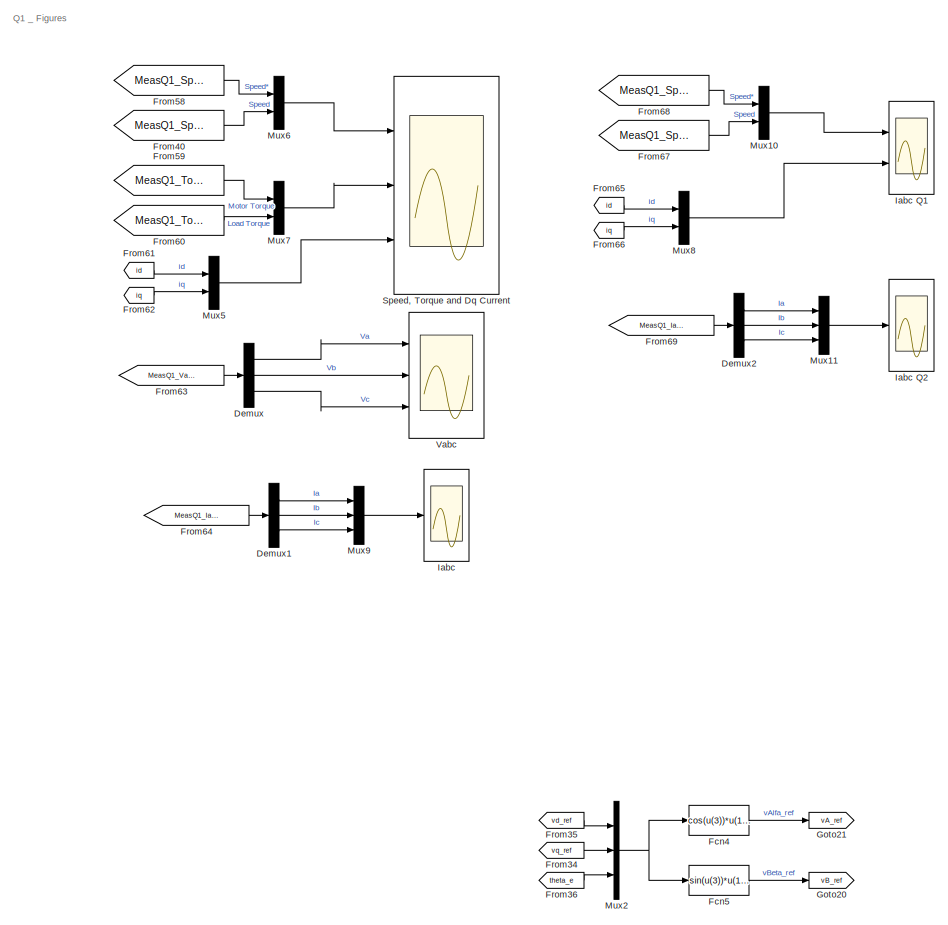
[diagram: root canvas - part 1/6, top left region]
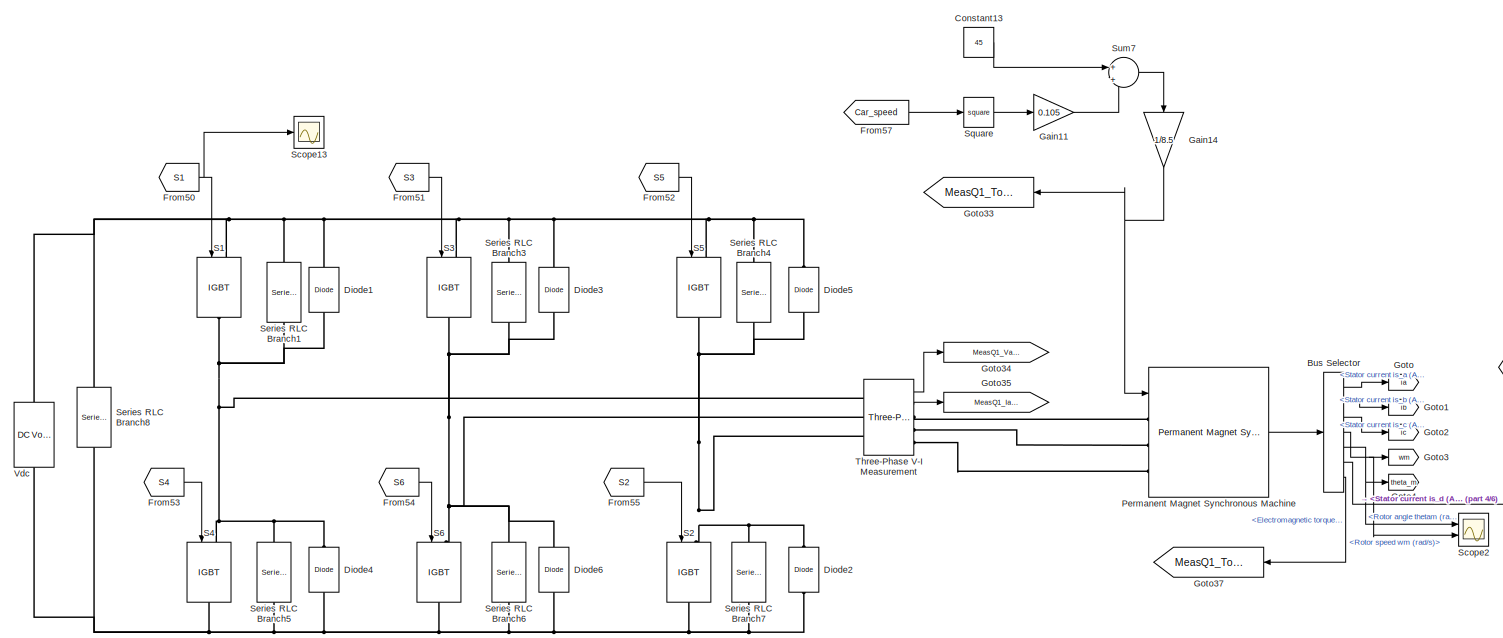
[diagram: root canvas - part 2/6, central region]
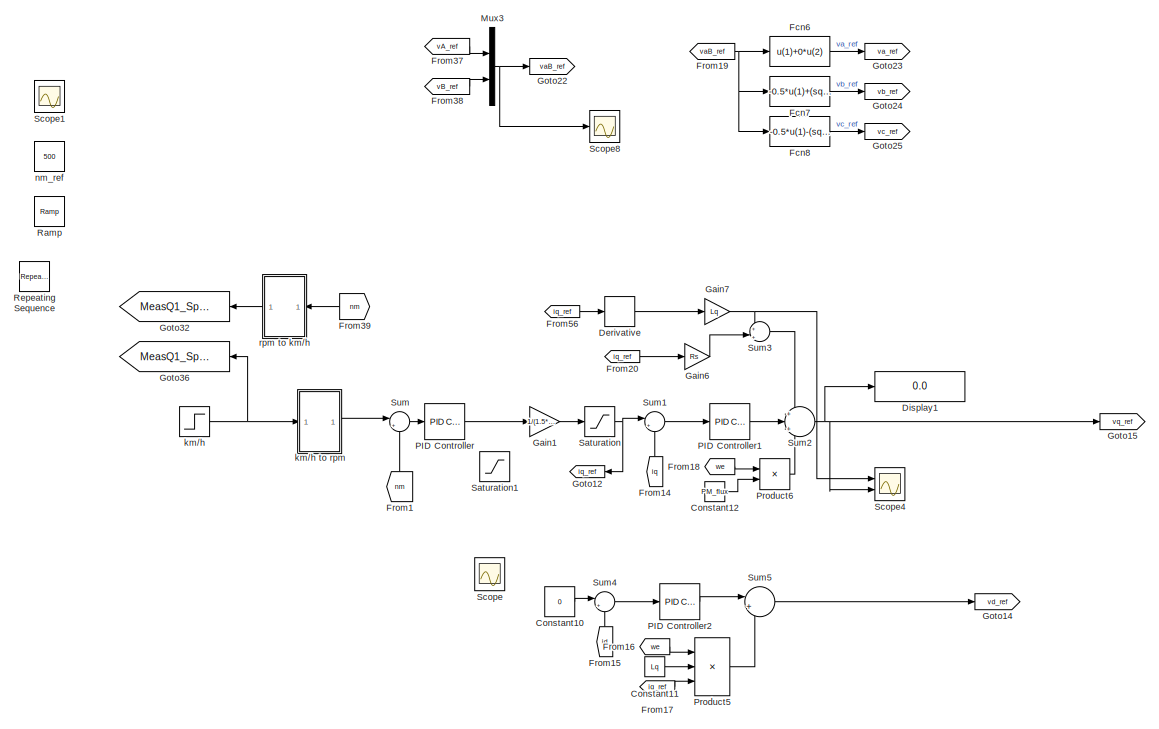
[diagram: root canvas - part 3/6, middle left region]
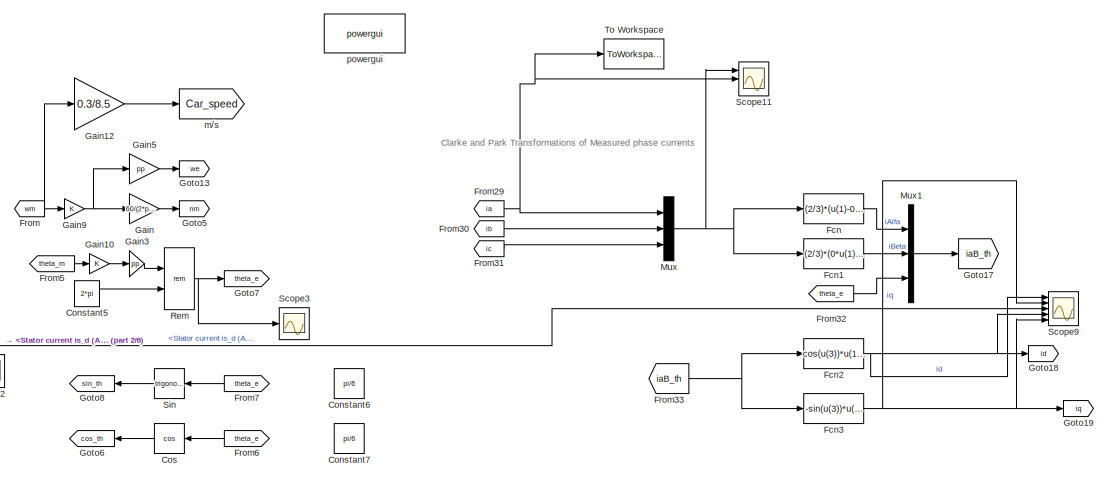
[diagram: root canvas - part 4/6, middle right region]
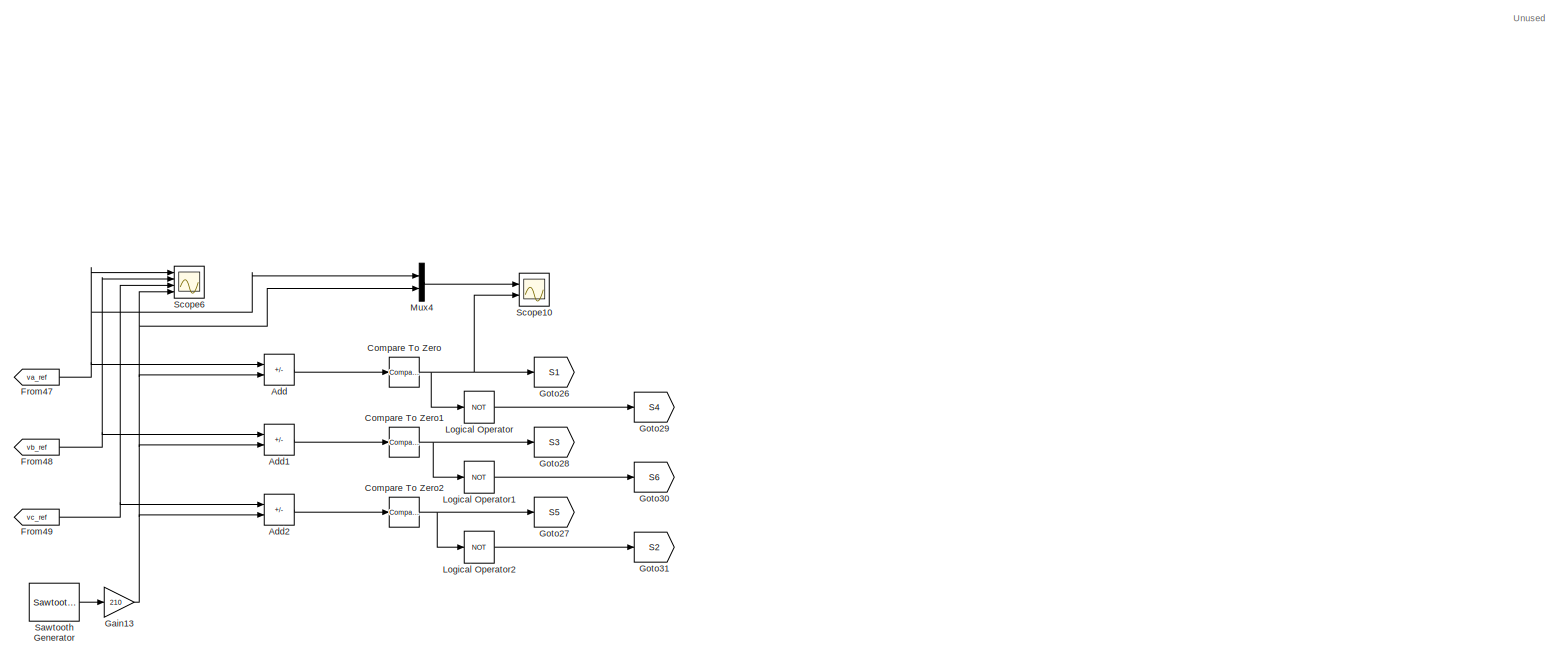
[diagram: root canvas - part 5/6, bottom center region]
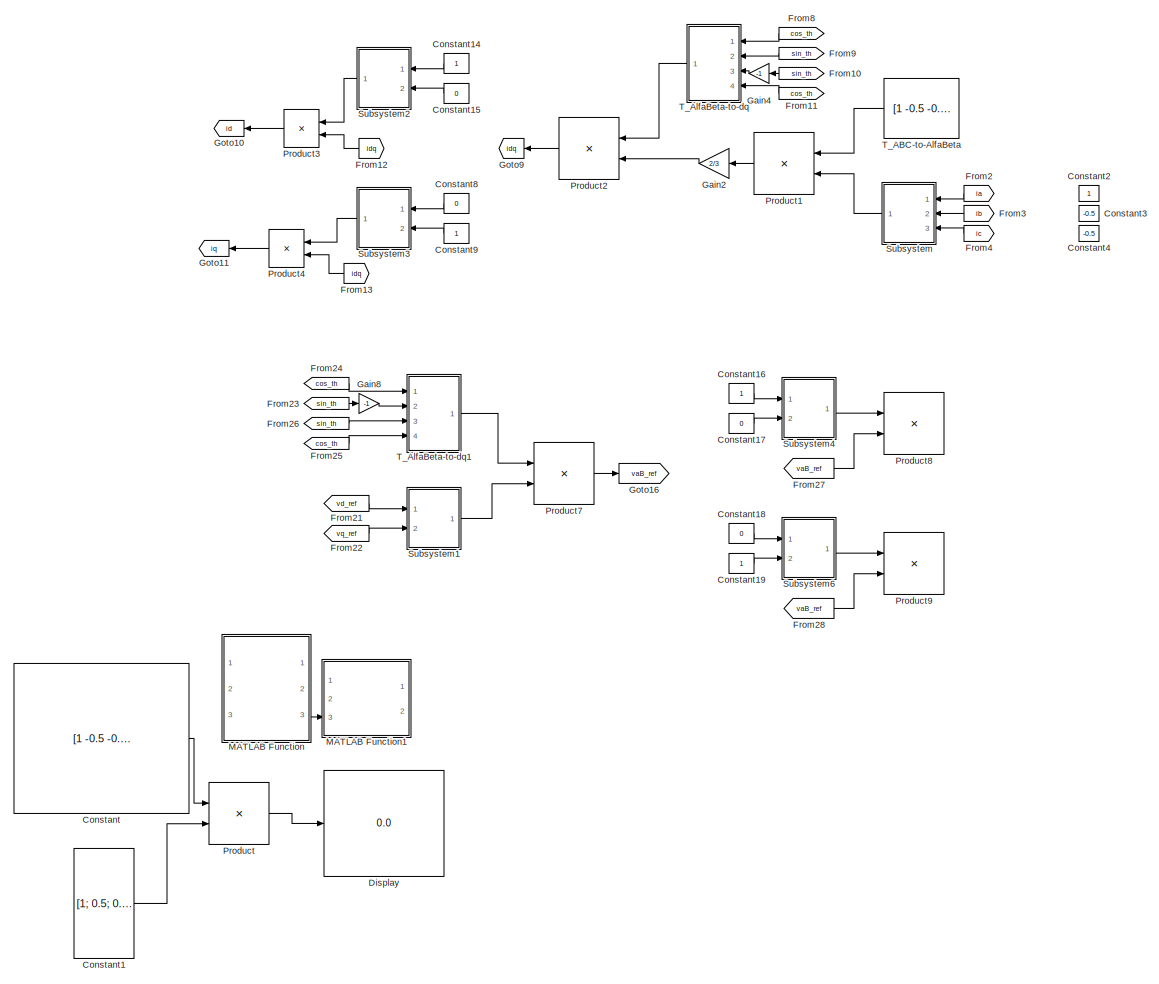
[diagram: root canvas - part 6/6, bottom right region]
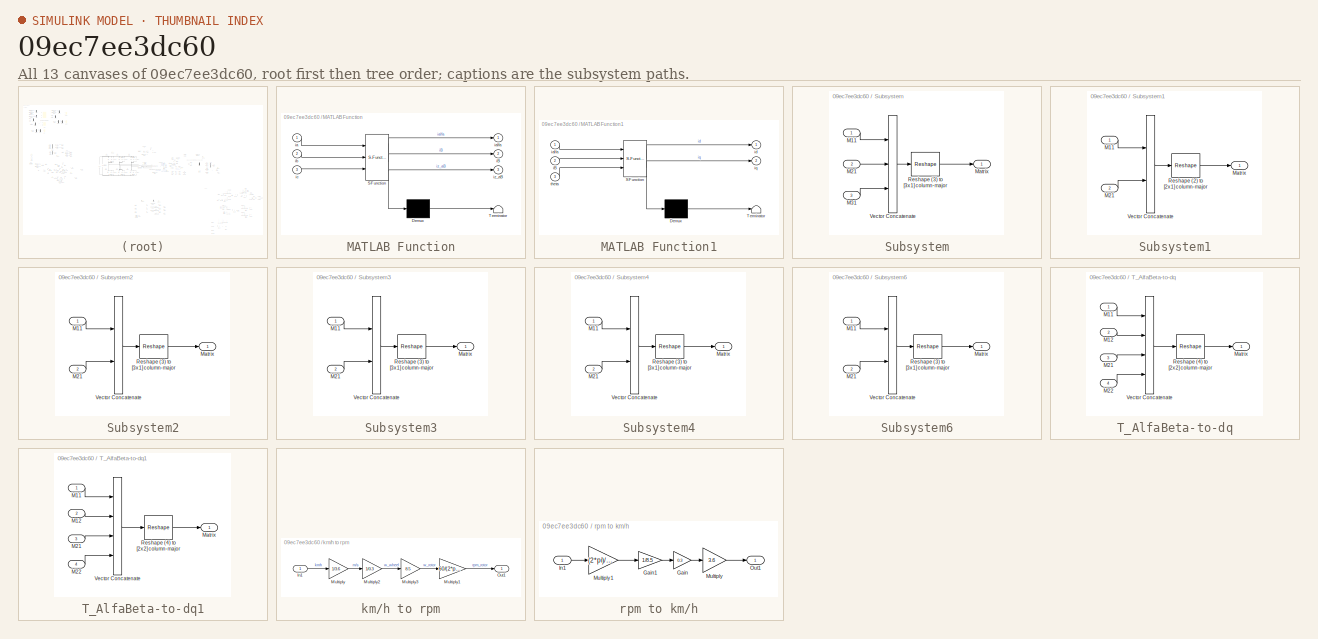
[diagram: thumbnail index - all 13 canvases of the model, root first then tree order]
MODEL slx_09ec7ee3dc60
KIND model
CONFIG AbsTol = auto
CONFIG EnableMultiTasking = off
CONFIG FixedStep = auto
CONFIG MaxStep = auto
CONFIG MinStep = auto
CONFIG RelTol = 1e-3
CONFIG SampleTimeConstraint = Unconstrained
CONFIG SolverName = FixedStepDiscrete
CONFIG StartTime = 0.0
CONFIG StopTime = 2
BLOCK [Sum] Add
  IconShape = rectangular
  Inputs = +-
  Ports = [2, 1]
BLOCK [Sum] Add1
  IconShape = rectangular
  Inputs = +-
  Ports = [2, 1]
BLOCK [Sum] Add2
  IconShape = rectangular
  Inputs = +-
  Ports = [2, 1]
BLOCK [BusSelector] Bus Selector
  OutputSignals = Stator current is_a (A),Stator current is_b (A),Stator current is_c (A),Rotor speed wm (rad/s),Rotor angle thetam (rad),Stator current is_d (A),Electromagnetic torque Te (N*m)
  Ports = [1, 7]
BLOCK [Reference] Compare To Zero  REF=simulink/Logic and Bit
Operations/Compare
To Zero
  Ports = [1, 1]
  SourceBlock = simulink/Logic and Bit\nOperations/Compare\nTo Zero
  SourceProductBaseCode = SL
  SourceType = Compare To Zero
BLOCK [Reference] Compare To Zero1  REF=simulink/Logic and Bit
Operations/Compare
To Zero
  Ports = [1, 1]
  SourceBlock = simulink/Logic and Bit\nOperations/Compare\nTo Zero
  SourceProductBaseCode = SL
  SourceType = Compare To Zero
BLOCK [Reference] Compare To Zero2  REF=simulink/Logic and Bit
Operations/Compare
To Zero
  Ports = [1, 1]
  SourceBlock = simulink/Logic and Bit\nOperations/Compare\nTo Zero
  SourceProductBaseCode = SL
  SourceType = Compare To Zero
BLOCK [Constant] Constant
  Commented = on
  Value = [1 -0.5 -0.5; 0 sqrt(3)/2 -sqrt(3)/2]
  VectorParams1D = off
BLOCK [Constant] Constant1
  Commented = on
  Value = [1; 0.5; 0.5]
  VectorParams1D = off
BLOCK [Constant] Constant10
  Value = 0
BLOCK [Constant] Constant11
  Value = Lq
BLOCK [Constant] Constant12
  Value = PM_flux
BLOCK [Constant] Constant13
  Value = 45
BLOCK [Constant] Constant14
  Commented = on
  NameLocation = top
BLOCK [Constant] Constant15
  Commented = on
  NameLocation = top
  Value = 0
BLOCK [Constant] Constant16
  Commented = on
BLOCK [Constant] Constant17
  Commented = on
  Value = 0
BLOCK [Constant] Constant18
  Commented = on
  Value = 0
BLOCK [Constant] Constant19
  Commented = on
BLOCK [Constant] Constant2
  Commented = on
  NameLocation = top
BLOCK [Constant] Constant3
  Commented = on
  NameLocation = top
  Value = -0.5
BLOCK [Constant] Constant4
  Commented = on
  NameLocation = top
  Value = -0.5
BLOCK [Constant] Constant5
  Value = 2*pi
BLOCK [Constant] Constant6
  Commented = on
  NameLocation = top
  Value = pi/6
BLOCK [Constant] Constant7
  Commented = on
  NameLocation = top
  Value = pi/6
BLOCK [Constant] Constant8
  Commented = on
  NameLocation = top
  Value = 0
BLOCK [Constant] Constant9
  Commented = on
  NameLocation = top
BLOCK [Trigonometry] Cos
  Commented = on
  NameLocation = top
  Operator = cos
  Ports = [1, 1]
BLOCK [Demux] Demux
  Commented = on
  Outputs = 3
  Ports = [1, 3]
BLOCK [Demux] Demux1
  Commented = on
  Outputs = 3
  Ports = [1, 3]
BLOCK [Demux] Demux2
  Outputs = 3
  Ports = [1, 3]
BLOCK [Derivative] Derivative
BLOCK [Reference] Diode1  REF=powerlib/Power
Electronics/Diode
  NameLocation = right
  Ports = [0, 0, 0, 0, 0, 1, 1]
  SourceBlock = powerlib/Power\nElectronics/Diode
  SourceProductBaseCode = PS
  SourceType = Diode
BLOCK [Reference] Diode2  REF=powerlib/Power
Electronics/Diode
  NameLocation = right
  Ports = [0, 0, 0, 0, 0, 1, 1]
  SourceBlock = powerlib/Power\nElectronics/Diode
  SourceProductBaseCode = PS
  SourceType = Diode
BLOCK [Reference] Diode3  REF=powerlib/Power
Electronics/Diode
  NameLocation = right
  Ports = [0, 0, 0, 0, 0, 1, 1]
  SourceBlock = powerlib/Power\nElectronics/Diode
  SourceProductBaseCode = PS
  SourceType = Diode
BLOCK [Reference] Diode4  REF=powerlib/Power
Electronics/Diode
  NameLocation = right
  Ports = [0, 0, 0, 0, 0, 1, 1]
  SourceBlock = powerlib/Power\nElectronics/Diode
  SourceProductBaseCode = PS
  SourceType = Diode
BLOCK [Reference] Diode5  REF=powerlib/Power
Electronics/Diode
  NameLocation = right
  Ports = [0, 0, 0, 0, 0, 1, 1]
  SourceBlock = powerlib/Power\nElectronics/Diode
  SourceProductBaseCode = PS
  SourceType = Diode
BLOCK [Reference] Diode6  REF=powerlib/Power
Electronics/Diode
  NameLocation = right
  Ports = [0, 0, 0, 0, 0, 1, 1]
  SourceBlock = powerlib/Power\nElectronics/Diode
  SourceProductBaseCode = PS
  SourceType = Diode
BLOCK [Display] Display
  Commented = on
  Decimation = 1
  Ports = [1]
BLOCK [Display] Display1
  Decimation = 1
  Ports = [1]
BLOCK [Fcn] Fcn
  Expr = (2/3)*(u(1)-0.5*u(2)-0.5*u(3))
BLOCK [Fcn] Fcn1
  Expr = (2/3)*(0*u(1)+(sqrt(3)/2)*u(2)-(sqrt(3)/2)*u(3))
BLOCK [Fcn] Fcn2
  Expr = cos(u(3))*u(1)+sin(u(3))*u(2)
BLOCK [Fcn] Fcn3
  Expr = -sin(u(3))*u(1)+cos(u(3))*u(2)
BLOCK [Fcn] Fcn4
  Expr = cos(u(3))*u(1)-sin(u(3))*u(2)
BLOCK [Fcn] Fcn5
  Expr = sin(u(3))*u(1)+cos(u(3))*u(2)
BLOCK [Fcn] Fcn6
  Expr = u(1)+0*u(2)
BLOCK [Fcn] Fcn7
  Expr = -0.5*u(1)+(sqrt(3)/2)*u(2)
BLOCK [Fcn] Fcn8
  Expr = -0.5*u(1)-(sqrt(3)/2)*u(2)
BLOCK [From] From
  GotoTag = wm
BLOCK [From] From1
  GotoTag = nm
  NameLocation = right
BLOCK [From] From10
  Commented = on
  GotoTag = sin_th
  NameLocation = top
BLOCK [From] From11
  Commented = on
  GotoTag = cos_th
  NameLocation = top
BLOCK [From] From12
  Commented = on
  GotoTag = idq
BLOCK [From] From13
  Commented = on
  GotoTag = idq
BLOCK [From] From14
  GotoTag = iq
  NameLocation = left
BLOCK [From] From15
  GotoTag = id
  NameLocation = left
BLOCK [From] From16
  GotoTag = we
BLOCK [From] From17
  GotoTag = iq_ref
  NameLocation = top
BLOCK [From] From18
  GotoTag = we
BLOCK [From] From19
  GotoTag = vaB_ref
BLOCK [From] From2
  Commented = on
  GotoTag = ia
  NameLocation = top
BLOCK [From] From20
  GotoTag = iq_ref
  NameLocation = top
BLOCK [From] From21
  Commented = on
  GotoTag = vd_ref
BLOCK [From] From22
  Commented = on
  GotoTag = vq_ref
BLOCK [From] From23
  Commented = on
  GotoTag = sin_th
BLOCK [From] From24
  Commented = on
  GotoTag = cos_th
BLOCK [From] From25
  Commented = on
  GotoTag = cos_th
BLOCK [From] From26
  Commented = on
  GotoTag = sin_th
BLOCK [From] From27
  Commented = on
  GotoTag = vaB_ref
  NameLocation = top
BLOCK [From] From28
  Commented = on
  GotoTag = vaB_ref
  NameLocation = top
BLOCK [From] From29
  GotoTag = ia
BLOCK [From] From3
  Commented = on
  GotoTag = ib
BLOCK [From] From30
  GotoTag = ib
  NameLocation = top
BLOCK [From] From31
  GotoTag = ic
BLOCK [From] From32
  GotoTag = theta_e
BLOCK [From] From33
  GotoTag = iaB_th
BLOCK [From] From34
  GotoTag = vq_ref
BLOCK [From] From35
  GotoTag = vd_ref
BLOCK [From] From36
  GotoTag = theta_e
BLOCK [From] From37
  GotoTag = vA_ref
BLOCK [From] From38
  GotoTag = vB_ref
BLOCK [From] From39
  GotoTag = nm
  NameLocation = top
BLOCK [From] From4
  Commented = on
  GotoTag = ic
  NameLocation = top
BLOCK [From] From40
  Commented = on
  GotoTag = MeasQ1_Speed
  NameLocation = top
BLOCK [From] From47
  GotoTag = va_ref
BLOCK [From] From48
  GotoTag = vb_ref
BLOCK [From] From49
  GotoTag = vc_ref
BLOCK [From] From5
  GotoTag = theta_m
BLOCK [From] From50
  GotoTag = S1
BLOCK [From] From51
  GotoTag = S3
BLOCK [From] From52
  GotoTag = S5
BLOCK [From] From53
  GotoTag = S4
BLOCK [From] From54
  GotoTag = S6
BLOCK [From] From55
  GotoTag = S2
BLOCK [From] From56
  GotoTag = iq_ref
  NameLocation = top
BLOCK [From] From57
  GotoTag = Car_speed
BLOCK [From] From58
  Commented = on
  GotoTag = MeasQ1_Speed_Ref
  NameLocation = top
BLOCK [From] From59
  Commented = on
  GotoTag = MeasQ1_Torque_Ref
  NameLocation = top
BLOCK [From] From6
  Commented = on
  GotoTag = theta_e
  NameLocation = top
BLOCK [From] From60
  Commented = on
  GotoTag = MeasQ1_Torque
  NameLocation = top
BLOCK [From] From61
  Commented = on
  GotoTag = id
BLOCK [From] From62
  Commented = on
  GotoTag = iq
BLOCK [From] From63
  Commented = on
  GotoTag = MeasQ1_Vabc
BLOCK [From] From64
  Commented = on
  GotoTag = MeasQ1_Iabc
BLOCK [From] From65
  GotoTag = id
BLOCK [From] From66
  GotoTag = iq
BLOCK [From] From67
  GotoTag = MeasQ1_Speed
  NameLocation = top
BLOCK [From] From68
  GotoTag = MeasQ1_Speed_Ref
  NameLocation = top
BLOCK [From] From69
  GotoTag = MeasQ1_Iabc
BLOCK [From] From7
  Commented = on
  GotoTag = theta_e
  NameLocation = top
BLOCK [From] From8
  Commented = on
  GotoTag = cos_th
  NameLocation = top
BLOCK [From] From9
  Commented = on
  GotoTag = sin_th
  NameLocation = top
BLOCK [Gain] Gain
  Gain = 60/(2*pi)
BLOCK [Gain] Gain1
  Gain = 1/(1.5*pp*PM_flux)
BLOCK [Gain] Gain10
BLOCK [Gain] Gain11
  Gain = 0.105
BLOCK [Gain] Gain12
  Gain = 0.3/8.5
BLOCK [Gain] Gain13
  Gain = 210
BLOCK [Gain] Gain14
  Gain = 1/8.5
  NameLocation = left
BLOCK [Gain] Gain2
  Commented = on
  Gain = 2/3
  NameLocation = top
BLOCK [Gain] Gain3
  Gain = pp
BLOCK [Gain] Gain4
  Commented = on
  Gain = -1
  NameLocation = top
BLOCK [Gain] Gain5
  Gain = pp
BLOCK [Gain] Gain6
  Gain = Rs
BLOCK [Gain] Gain7
  Gain = Lq
BLOCK [Gain] Gain8
  Commented = on
  Gain = -1
BLOCK [Gain] Gain9
BLOCK [Goto] Goto
  GotoTag = ia
BLOCK [Goto] Goto1
  GotoTag = ib
BLOCK [Goto] Goto10
  Commented = on
  GotoTag = id
  NameLocation = top
BLOCK [Goto] Goto11
  Commented = on
  GotoTag = iq
  NameLocation = top
BLOCK [Goto] Goto12
  GotoTag = iq_ref
  NameLocation = top
BLOCK [Goto] Goto13
  GotoTag = we
BLOCK [Goto] Goto14
  GotoTag = vd_ref
BLOCK [Goto] Goto15
  GotoTag = vq_ref
BLOCK [Goto] Goto16
  Commented = on
  GotoTag = vaB_ref
  NameLocation = top
BLOCK [Goto] Goto17
  GotoTag = iaB_th
BLOCK [Goto] Goto18
  GotoTag = id
BLOCK [Goto] Goto19
  GotoTag = iq
BLOCK [Goto] Goto2
  GotoTag = ic
BLOCK [Goto] Goto20
  GotoTag = vB_ref
BLOCK [Goto] Goto21
  GotoTag = vA_ref
BLOCK [Goto] Goto22
  GotoTag = vaB_ref
BLOCK [Goto] Goto23
  GotoTag = va_ref
BLOCK [Goto] Goto24
  GotoTag = vb_ref
BLOCK [Goto] Goto25
  GotoTag = vc_ref
BLOCK [Goto] Goto26
  GotoTag = S1
BLOCK [Goto] Goto27
  GotoTag = S5
BLOCK [Goto] Goto28
  GotoTag = S3
BLOCK [Goto] Goto29
  GotoTag = S4
BLOCK [Goto] Goto3
  GotoTag = wm
BLOCK [Goto] Goto30
  GotoTag = S6
BLOCK [Goto] Goto31
  GotoTag = S2
BLOCK [Goto] Goto32
  GotoTag = MeasQ1_Speed
  NameLocation = top
BLOCK [Goto] Goto33
  GotoTag = MeasQ1_Torque
  NameLocation = top
BLOCK [Goto] Goto34
  GotoTag = MeasQ1_Vabc
BLOCK [Goto] Goto35
  GotoTag = MeasQ1_Iabc
BLOCK [Goto] Goto36
  GotoTag = MeasQ1_Speed_Ref
  NameLocation = top
BLOCK [Goto] Goto37
  GotoTag = MeasQ1_Torque_Ref
  NameLocation = top
BLOCK [Goto] Goto4
  GotoTag = theta_m
BLOCK [Goto] Goto5
  GotoTag = nm
BLOCK [Goto] Goto6
  Commented = on
  GotoTag = cos_th
  NameLocation = top
BLOCK [Goto] Goto7
  GotoTag = theta_e
BLOCK [Goto] Goto8
  Commented = on
  GotoTag = sin_th
  NameLocation = top
BLOCK [Goto] Goto9
  Commented = on
  GotoTag = idq
  NameLocation = top
BLOCK [Scope] Iabc
  Commented = on
  Floating = off
  NumInputPorts = 1
  Ports = [1]
  ScopeSpecificationString = Simulink.scopes.TimeScopeBlockCfg('CurrentConfiguration', extmgr.ConfigurationSet(extmgr.Configuration('Core','General UI',true,'FigureColor',[1 1 1]),extmgr.Configuration('Core','Source UI',true),extmgr.Configuration('Sources','WiredSimulink',true,'DataLoggingVariableName','ScopeData3'),extmgr.Configuration('Visuals','Time Domain',true,'SerializedDisplays',{struct('MinYLimReal','-668.32301','MaxY...<+1942ch>
BLOCK [Scope] Iabc Q1
  Floating = off
  NumInputPorts = 2
  Ports = [2]
  ScopeSpecificationString = Simulink.scopes.TimeScopeBlockCfg('CurrentConfiguration', extmgr.ConfigurationSet(extmgr.Configuration('Core','General UI',true,'FigureColor',[1 1 1]),extmgr.Configuration('Core','Source UI',true),extmgr.Configuration('Sources','WiredSimulink',true,'DataLoggingVariableName','ScopeData5'),extmgr.Configuration('Visuals','Time Domain',true,'SerializedDisplays',{struct('MinYLimReal','-14.00000','MaxYL...<+2942ch>
BLOCK [Scope] Iabc Q2
  Floating = off
  NumInputPorts = 1
  Ports = [1]
  ScopeSpecificationString = Simulink.scopes.TimeScopeBlockCfg('CurrentConfiguration', extmgr.ConfigurationSet(extmgr.Configuration('Core','General UI',true,'FigureColor',[1 1 1]),extmgr.Configuration('Core','Source UI',true),extmgr.Configuration('Sources','WiredSimulink',true,'DataLoggingVariableName','ScopeData4'),extmgr.Configuration('Visuals','Time Domain',true,'SerializedDisplays',{struct('MinYLimReal','-630.12709','MaxY...<+1942ch>
BLOCK [Logic] Logical Operator
  AllPortsSameDT = off
  Operator = NOT
  OutDataTypeStr = boolean
  Ports = [1, 1]
BLOCK [Logic] Logical Operator1
  AllPortsSameDT = off
  Operator = NOT
  OutDataTypeStr = boolean
  Ports = [1, 1]
BLOCK [Logic] Logical Operator2
  AllPortsSameDT = off
  Operator = NOT
  OutDataTypeStr = boolean
  Ports = [1, 1]
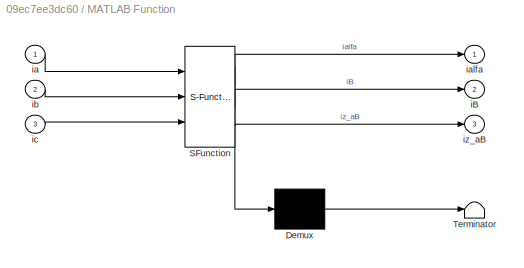
BLOCK [SubSystem] MATLAB Function
  Commented = on
  ErrorFcn = Stateflow.Translate.translate
  PermitHierarchicalResolution = ExplicitOnly
  Ports = [3, 3]
  RequestExecContextInheritance = off
  SFBlockType = MATLAB Function
  TreatAsAtomicUnit = on
BLOCK [Demux] MATLAB Function/ Demux 
  Outputs = 1
  Ports = [1, 1]
BLOCK [S-Function] MATLAB Function/ SFunction 
  EnableBusSupport = on
  FunctionName = sf_sfun
  PortCounts = [3 4]
  Ports = [3, 4]
  SFcnIsStateOwnerBlock = off
  SFunctionDeploymentMode = off
  Tag = Stateflow S-Function 2
BLOCK [Terminator] MATLAB Function/ Terminator 
BLOCK [Outport] MATLAB Function/iB
  Port = 2
  VectorParamsAs1DForOutWhenUnconnected = off
BLOCK [Inport] MATLAB Function/ia
BLOCK [Outport] MATLAB Function/ialfa
  VectorParamsAs1DForOutWhenUnconnected = off
BLOCK [Inport] MATLAB Function/ib
  Port = 2
BLOCK [Inport] MATLAB Function/ic
  Port = 3
BLOCK [Outport] MATLAB Function/iz_aB
  Port = 3
  VectorParamsAs1DForOutWhenUnconnected = off
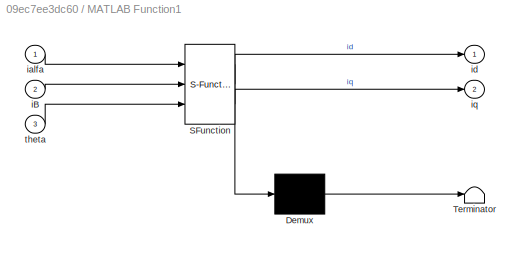
BLOCK [SubSystem] MATLAB Function1
  Commented = on
  ErrorFcn = Stateflow.Translate.translate
  PermitHierarchicalResolution = ExplicitOnly
  Ports = [3, 2]
  RequestExecContextInheritance = off
  SFBlockType = MATLAB Function
  TreatAsAtomicUnit = on
BLOCK [Demux] MATLAB Function1/ Demux 
  Outputs = 1
  Ports = [1, 1]
BLOCK [S-Function] MATLAB Function1/ SFunction 
  EnableBusSupport = on
  FunctionName = sf_sfun
  PortCounts = [3 3]
  Ports = [3, 3]
  SFcnIsStateOwnerBlock = off
  SFunctionDeploymentMode = off
  Tag = Stateflow S-Function 1
BLOCK [Terminator] MATLAB Function1/ Terminator 
BLOCK [Inport] MATLAB Function1/iB
  Port = 2
BLOCK [Inport] MATLAB Function1/ialfa
BLOCK [Outport] MATLAB Function1/id
  VectorParamsAs1DForOutWhenUnconnected = off
BLOCK [Outport] MATLAB Function1/iq
  Port = 2
  VectorParamsAs1DForOutWhenUnconnected = off
BLOCK [Inport] MATLAB Function1/theta
  Port = 3
BLOCK [Mux] Mux
  DisplayOption = bar
  Inputs = 3
  Ports = [3, 1]
BLOCK [Mux] Mux1
  DisplayOption = bar
  Inputs = 3
  Ports = [3, 1]
BLOCK [Mux] Mux10
  DisplayOption = bar
  Inputs = 2
  Ports = [2, 1]
BLOCK [Mux] Mux11
  DisplayOption = bar
  Inputs = 3
  Ports = [3, 1]
BLOCK [Mux] Mux2
  DisplayOption = bar
  Inputs = 3
  Ports = [3, 1]
BLOCK [Mux] Mux3
  DisplayOption = bar
  Inputs = 2
  Ports = [2, 1]
BLOCK [Mux] Mux4
  DisplayOption = bar
  Inputs = 2
  Ports = [2, 1]
BLOCK [Mux] Mux5
  Commented = on
  DisplayOption = bar
  Inputs = 2
  Ports = [2, 1]
BLOCK [Mux] Mux6
  Commented = on
  DisplayOption = bar
  Inputs = 2
  Ports = [2, 1]
BLOCK [Mux] Mux7
  Commented = on
  DisplayOption = bar
  Inputs = 2
  Ports = [2, 1]
BLOCK [Mux] Mux8
  DisplayOption = bar
  Inputs = 2
  Ports = [2, 1]
BLOCK [Mux] Mux9
  Commented = on
  DisplayOption = bar
  Inputs = 3
  Ports = [3, 1]
BLOCK [Reference] PID Controller  REF=pid_lib/PID Controller
  Ports = [1, 1]
  SourceBlock = pid_lib/PID Controller
  SourceProductBaseCode = SL
  SourceType = PID 1dof
BLOCK [Reference] PID Controller1  REF=pid_lib/PID Controller
  Ports = [1, 1]
  SourceBlock = pid_lib/PID Controller
  SourceProductBaseCode = SL
  SourceType = PID 1dof
BLOCK [Reference] PID Controller2  REF=pid_lib/PID Controller
  Ports = [1, 1]
  SourceBlock = pid_lib/PID Controller
  SourceProductBaseCode = SL
  SourceType = PID 1dof
BLOCK [Reference] Permanent Magnet Synchronous Machine  REF=powerlib/Machines/Permanent Magnet
Synchronous Machine
  Ports = [1, 1, 0, 0, 0, 3]
  SourceBlock = powerlib/Machines/Permanent Magnet\nSynchronous Machine
  SourceProductBaseCode = PS
  SourceType = Permanent Magnet Synchronous Machine
BLOCK [Product] Product
  Commented = on
  Multiplication = Matrix(*)
  Ports = [2, 1]
BLOCK [Product] Product1
  Commented = on
  Multiplication = Matrix(*)
  NameLocation = top
  Ports = [2, 1]
BLOCK [Product] Product2
  Commented = on
  Multiplication = Matrix(*)
  NameLocation = top
  Ports = [2, 1]
BLOCK [Product] Product3
  Commented = on
  Multiplication = Matrix(*)
  NameLocation = top
  Ports = [2, 1]
BLOCK [Product] Product4
  Commented = on
  Multiplication = Matrix(*)
  NameLocation = top
  Ports = [2, 1]
BLOCK [Product] Product5
  Inputs = 3
  Ports = [3, 1]
BLOCK [Product] Product6
  Ports = [2, 1]
BLOCK [Product] Product7
  Commented = on
  Multiplication = Matrix(*)
  Ports = [2, 1]
BLOCK [Product] Product8
  Commented = on
  Multiplication = Matrix(*)
  Ports = [2, 1]
BLOCK [Product] Product9
  Commented = on
  Multiplication = Matrix(*)
  Ports = [2, 1]
BLOCK [Reference] Ramp  REF=simulink/Sources/Ramp
  Ports = [0, 1]
  SourceBlock = simulink/Sources/Ramp
  SourceProductBaseCode = SL
  SourceType = Ramp
BLOCK [Math] Rem
  Operator = rem
  Ports = [2, 1]
  SignedPower = on
BLOCK [Reference] Repeating Sequence  REF=simulink/Sources/Repeating
Sequence
  Ports = [0, 1]
  SourceBlock = simulink/Sources/Repeating\nSequence
  SourceProductBaseCode = SL
  SourceType = Repeating table
BLOCK [Reference] S1  REF=powerlib/Power
Electronics/IGBT
  NameLocation = left
  Ports = [1, 0, 0, 0, 0, 1, 1]
  SourceBlock = powerlib/Power\nElectronics/IGBT
  SourceProductBaseCode = PS
  SourceType = IGBT
BLOCK [Reference] S2  REF=powerlib/Power
Electronics/IGBT
  NameLocation = left
  Ports = [1, 0, 0, 0, 0, 1, 1]
  SourceBlock = powerlib/Power\nElectronics/IGBT
  SourceProductBaseCode = PS
  SourceType = IGBT
BLOCK [Reference] S3  REF=powerlib/Power
Electronics/IGBT
  NameLocation = left
  Ports = [1, 0, 0, 0, 0, 1, 1]
  SourceBlock = powerlib/Power\nElectronics/IGBT
  SourceProductBaseCode = PS
  SourceType = IGBT
BLOCK [Reference] S4  REF=powerlib/Power
Electronics/IGBT
  NameLocation = left
  Ports = [1, 0, 0, 0, 0, 1, 1]
  SourceBlock = powerlib/Power\nElectronics/IGBT
  SourceProductBaseCode = PS
  SourceType = IGBT
BLOCK [Reference] S5  REF=powerlib/Power
Electronics/IGBT
  NameLocation = left
  Ports = [1, 0, 0, 0, 0, 1, 1]
  SourceBlock = powerlib/Power\nElectronics/IGBT
  SourceProductBaseCode = PS
  SourceType = IGBT
BLOCK [Reference] S6  REF=powerlib/Power
Electronics/IGBT
  NameLocation = left
  Ports = [1, 0, 0, 0, 0, 1, 1]
  SourceBlock = powerlib/Power\nElectronics/IGBT
  SourceProductBaseCode = PS
  SourceType = IGBT
BLOCK [Saturate] Saturation
  LowerLimit = -530
  UpperLimit = 530
BLOCK [Saturate] Saturation1
  LowerLimit = -350
  UpperLimit = 350
BLOCK [Reference] Sawtooth Generator  REF=powerlib_meascontrol/Pulse & Signal
Generators/Sawtooth
Generator
  Ports = [0, 1]
  SourceBlock = powerlib_meascontrol/Pulse & Signal\nGenerators/Sawtooth\nGenerator
  SourceProductBaseCode = PS
  SourceType = Sawtooth Generator
BLOCK [Scope] Scope
  Floating = off
  NumInputPorts = 2
  Ports = [2]
  ScopeSpecificationString = Simulink.scopes.TimeScopeBlockCfg('CurrentConfiguration', extmgr.ConfigurationSet(extmgr.Configuration('Core','General UI',true),extmgr.Configuration('Core','Source UI',true),extmgr.Configuration('Sources','WiredSimulink',true),extmgr.Configuration('Visuals','Time Domain',true,'SerializedDisplays',{struct('MinYLimReal','281.79709','MaxYLimReal','290.03151','YLabelReal','','MinYLimMag','281.79709',...<+1471ch>
BLOCK [Scope] Scope1
  Floating = off
  NumInputPorts = 1
  Ports = [1]
  ScopeSpecificationString = Simulink.scopes.TimeScopeBlockCfg('CurrentConfiguration', extmgr.ConfigurationSet(extmgr.Configuration('Core','General UI',true),extmgr.Configuration('Core','Source UI',true),extmgr.Configuration('Sources','WiredSimulink',true,'DataLoggingVariableName','ScopeData1'),extmgr.Configuration('Visuals','Time Domain',true,'SerializedDisplays',{struct('MinYLimReal','-125.00000','MaxYLimReal','1125.00000',...<+1406ch>
BLOCK [Scope] Scope10
  Floating = off
  NumInputPorts = 2
  Ports = [2]
  ScopeSpecificationString = Simulink.scopes.TimeScopeBlockCfg('CurrentConfiguration', extmgr.ConfigurationSet(extmgr.Configuration('Core','General UI',true),extmgr.Configuration('Core','Source UI',true),extmgr.Configuration('Sources','WiredSimulink',true,'DataLoggingVariableName','ScopeData2'),extmgr.Configuration('Visuals','Time Domain',true,'SerializedDisplays',{struct('MinYLimReal','-2.60717','MaxYLimReal','1.42353','YLab...<+2060ch>
BLOCK [Scope] Scope11
  Floating = off
  NumInputPorts = 3
  Ports = [3]
  ScopeSpecificationString = Simulink.scopes.TimeScopeBlockCfg('CurrentConfiguration', extmgr.ConfigurationSet(extmgr.Configuration('Core','General UI',true),extmgr.Configuration('Core','Source UI',true),extmgr.Configuration('Sources','WiredSimulink',true,'DataLoggingVariableName','ScopeData4'),extmgr.Configuration('Visuals','Time Domain',true,'SerializedDisplays',{struct('MinYLimReal','-53.66469','MaxYLimReal','75.01016','YL...<+2145ch>
BLOCK [Scope] Scope13
  Floating = off
  NumInputPorts = 1
  Ports = [1]
  ScopeSpecificationString = Simulink.scopes.TimeScopeBlockCfg('CurrentConfiguration', extmgr.ConfigurationSet(extmgr.Configuration('Core','General UI',true),extmgr.Configuration('Core','Source UI',true),extmgr.Configuration('Sources','WiredSimulink',true,'DataLoggingVariableName','ScopeData2'),extmgr.Configuration('Visuals','Time Domain',true,'SerializedDisplays',{struct('MinYLimReal','-1.25608','MaxYLimReal','2.07271','YLab...<+1393ch>
BLOCK [Scope] Scope2
  Floating = off
  NumInputPorts = 2
  Ports = [2]
  ScopeSpecificationString = Simulink.scopes.TimeScopeBlockCfg('CurrentConfiguration', extmgr.ConfigurationSet(extmgr.Configuration('Core','General UI',true),extmgr.Configuration('Core','Source UI',true),extmgr.Configuration('Sources','WiredSimulink',true,'DataLoggingVariableName','ScopeData2'),extmgr.Configuration('Visuals','Time Domain',true,'SerializedDisplays',{struct('MinYLimReal','-7.90763','MaxYLimReal','71.13549','YLa...<+1439ch>
BLOCK [Scope] Scope3
  Floating = off
  NumInputPorts = 1
  Ports = [1]
  ScopeSpecificationString = Simulink.scopes.TimeScopeBlockCfg('CurrentConfiguration', extmgr.ConfigurationSet(extmgr.Configuration('Core','General UI',true),extmgr.Configuration('Core','Source UI',true),extmgr.Configuration('Sources','WiredSimulink',true,'DataLoggingVariableName','ScopeData3'),extmgr.Configuration('Visuals','Time Domain',true,'SerializedDisplays',{struct('MinYLimReal','-0.78539','MaxYLimReal','7.06849','YLab...<+1406ch>
BLOCK [Scope] Scope4
  Floating = off
  NameLocation = top
  NumInputPorts = 2
  Ports = [2]
  ScopeSpecificationString = Simulink.scopes.TimeScopeBlockCfg('CurrentConfiguration', extmgr.ConfigurationSet(extmgr.Configuration('Core','General UI',true),extmgr.Configuration('Core','Source UI',true),extmgr.Configuration('Sources','WiredSimulink',true,'DataLoggingVariableName','ScopeData1'),extmgr.Configuration('Visuals','Time Domain',true,'SerializedDisplays',{struct('MinYLimReal','-4.88809','MaxYLimReal','48.17932','YLa...<+1496ch>
BLOCK [Scope] Scope6
  Floating = off
  NumInputPorts = 4
  Ports = [4]
  ScopeSpecificationString = Simulink.scopes.TimeScopeBlockCfg('CurrentConfiguration', extmgr.ConfigurationSet(extmgr.Configuration('Core','General UI',true),extmgr.Configuration('Core','Source UI',true),extmgr.Configuration('Sources','WiredSimulink',true,'DataLoggingVariableName','ScopeData3'),extmgr.Configuration('Visuals','Time Domain',true,'SerializedDisplays',{struct('MinYLimReal','-1.52487','MaxYLimReal','1.14496','YLab...<+3489ch>
BLOCK [Scope] Scope8
  Floating = off
  NumInputPorts = 1
  Ports = [1]
  ScopeSpecificationString = Simulink.scopes.TimeScopeBlockCfg('CurrentConfiguration', extmgr.ConfigurationSet(extmgr.Configuration('Core','General UI',true),extmgr.Configuration('Core','Source UI',true),extmgr.Configuration('Sources','WiredSimulink',true,'DataLoggingVariableName','ScopeData1'),extmgr.Configuration('Visuals','Time Domain',true,'SerializedDisplays',{struct('MinYLimReal','-260.78933','MaxYLimReal','263.15762','...<+1515ch>
BLOCK [Scope] Scope9
  Floating = off
  NumInputPorts = 5
  Ports = [5]
  ScopeSpecificationString = Simulink.scopes.TimeScopeBlockCfg('CurrentConfiguration', extmgr.ConfigurationSet(extmgr.Configuration('Core','General UI',true),extmgr.Configuration('Core','Source UI',true),extmgr.Configuration('Sources','WiredSimulink',true,'DataLoggingVariableName','ScopeData2'),extmgr.Configuration('Visuals','Time Domain',true,'SerializedDisplays',{struct('MinYLimReal','-67.08882','MaxYLimReal','549.07798','Y...<+1602ch>
BLOCK [Reference] Series RLC Branch1  REF=powerlib/Elements/Series RLC Branch
  NameLocation = left
  Ports = [0, 0, 0, 0, 0, 1, 1]
  SourceBlock = powerlib/Elements/Series RLC Branch
  SourceProductBaseCode = PS
  SourceType = Series RLC Branch
BLOCK [Reference] Series RLC Branch3  REF=powerlib/Elements/Series RLC Branch
  NameLocation = left
  Ports = [0, 0, 0, 0, 0, 1, 1]
  SourceBlock = powerlib/Elements/Series RLC Branch
  SourceProductBaseCode = PS
  SourceType = Series RLC Branch
BLOCK [Reference] Series RLC Branch4  REF=powerlib/Elements/Series RLC Branch
  NameLocation = left
  Ports = [0, 0, 0, 0, 0, 1, 1]
  SourceBlock = powerlib/Elements/Series RLC Branch
  SourceProductBaseCode = PS
  SourceType = Series RLC Branch
BLOCK [Reference] Series RLC Branch5  REF=powerlib/Elements/Series RLC Branch
  NameLocation = left
  Ports = [0, 0, 0, 0, 0, 1, 1]
  SourceBlock = powerlib/Elements/Series RLC Branch
  SourceProductBaseCode = PS
  SourceType = Series RLC Branch
BLOCK [Reference] Series RLC Branch6  REF=powerlib/Elements/Series RLC Branch
  NameLocation = left
  Ports = [0, 0, 0, 0, 0, 1, 1]
  SourceBlock = powerlib/Elements/Series RLC Branch
  SourceProductBaseCode = PS
  SourceType = Series RLC Branch
BLOCK [Reference] Series RLC Branch7  REF=powerlib/Elements/Series RLC Branch
  NameLocation = left
  Ports = [0, 0, 0, 0, 0, 1, 1]
  SourceBlock = powerlib/Elements/Series RLC Branch
  SourceProductBaseCode = PS
  SourceType = Series RLC Branch
BLOCK [Reference] Series RLC Branch8  REF=powerlib/Elements/Series RLC Branch
  NameLocation = left
  Ports = [0, 0, 0, 0, 0, 1, 1]
  SourceBlock = powerlib/Elements/Series RLC Branch
  SourceProductBaseCode = PS
  SourceType = Series RLC Branch
BLOCK [Trigonometry] Sin
  Commented = on
  NameLocation = top
  Ports = [1, 1]
BLOCK [Scope] Speed, Torque and Dq Current
  Commented = on
  Floating = off
  NumInputPorts = 3
  Ports = [3]
  ScopeSpecificationString = Simulink.scopes.TimeScopeBlockCfg('CurrentConfiguration', extmgr.ConfigurationSet(extmgr.Configuration('Core','General UI',true,'FigureColor',[1 1 1]),extmgr.Configuration('Core','Source UI',true),extmgr.Configuration('Sources','WiredSimulink',true,'DataLoggingVariableName','ScopeData1'),extmgr.Configuration('Visuals','Time Domain',true,'SerializedDisplays',{struct('MinYLimReal','34.36515','MaxYLi...<+4505ch>
BLOCK [Math] Square
  Operator = square
  Ports = [1, 1]
  SignedPower = on
BLOCK [SubSystem] Subsystem
  Commented = on
  NameLocation = top
  Ports = [3, 1]
  RequestExecContextInheritance = off
BLOCK [Inport] Subsystem/M11
  PortDimensions = 1
BLOCK [Inport] Subsystem/M21
  Port = 2
  PortDimensions = 1
BLOCK [Inport] Subsystem/M31
  Port = 3
  PortDimensions = 1
BLOCK [Outport] Subsystem/Matrix
  PortDimensions = [3 1]
  VectorParamsAs1DForOutWhenUnconnected = off
BLOCK [Reshape] Subsystem/Reshape (3) to [3x1] column-major
  OutputDimensionality = Customize
  OutputDimensions = [3,1]
  Ports = [1, 1]
BLOCK [Concatenate] Subsystem/Vector Concatenate
  NumInputs = 3
  Ports = [3, 1]
BLOCK [SubSystem] Subsystem1
  Commented = on
  Ports = [2, 1]
  RequestExecContextInheritance = off
BLOCK [Inport] Subsystem1/M11
  PortDimensions = 1
BLOCK [Inport] Subsystem1/M21
  Port = 2
  PortDimensions = 1
BLOCK [Outport] Subsystem1/Matrix
  PortDimensions = [2 1]
  VectorParamsAs1DForOutWhenUnconnected = off
BLOCK [Reshape] Subsystem1/Reshape (2) to [2x1] column-major
  OutputDimensionality = Customize
  OutputDimensions = [2,1]
  Ports = [1, 1]
BLOCK [Concatenate] Subsystem1/Vector Concatenate
  Ports = [2, 1]
BLOCK [SubSystem] Subsystem2
  Commented = on
  NameLocation = top
  Ports = [2, 1]
  RequestExecContextInheritance = off
BLOCK [Inport] Subsystem2/M11
  PortDimensions = 1
BLOCK [Inport] Subsystem2/M21
  Port = 2
  PortDimensions = 1
BLOCK [Outport] Subsystem2/Matrix
  PortDimensions = [1 2]
  VectorParamsAs1DForOutWhenUnconnected = off
BLOCK [Reshape] Subsystem2/Reshape (3) to [3x1] column-major
  OutputDimensionality = Customize
  OutputDimensions = [1,2]
  Ports = [1, 1]
BLOCK [Concatenate] Subsystem2/Vector Concatenate
  Ports = [2, 1]
BLOCK [SubSystem] Subsystem3
  Commented = on
  NameLocation = top
  Ports = [2, 1]
  RequestExecContextInheritance = off
BLOCK [Inport] Subsystem3/M11
  PortDimensions = 1
BLOCK [Inport] Subsystem3/M21
  Port = 2
  PortDimensions = 1
BLOCK [Outport] Subsystem3/Matrix
  PortDimensions = [1 2]
  VectorParamsAs1DForOutWhenUnconnected = off
BLOCK [Reshape] Subsystem3/Reshape (3) to [3x1] column-major
  OutputDimensionality = Customize
  OutputDimensions = [1,2]
  Ports = [1, 1]
BLOCK [Concatenate] Subsystem3/Vector Concatenate
  Ports = [2, 1]
BLOCK [SubSystem] Subsystem4
  Commented = on
  Ports = [2, 1]
  RequestExecContextInheritance = off
BLOCK [Inport] Subsystem4/M11
  PortDimensions = 1
BLOCK [Inport] Subsystem4/M21
  Port = 2
  PortDimensions = 1
BLOCK [Outport] Subsystem4/Matrix
  PortDimensions = [1 2]
  VectorParamsAs1DForOutWhenUnconnected = off
BLOCK [Reshape] Subsystem4/Reshape (3) to [3x1] column-major
  OutputDimensionality = Customize
  OutputDimensions = [1,2]
  Ports = [1, 1]
BLOCK [Concatenate] Subsystem4/Vector Concatenate
  Ports = [2, 1]
BLOCK [SubSystem] Subsystem6
  Commented = on
  Ports = [2, 1]
  RequestExecContextInheritance = off
BLOCK [Inport] Subsystem6/M11
  PortDimensions = 1
BLOCK [Inport] Subsystem6/M21
  Port = 2
  PortDimensions = 1
BLOCK [Outport] Subsystem6/Matrix
  PortDimensions = [1 2]
  VectorParamsAs1DForOutWhenUnconnected = off
BLOCK [Reshape] Subsystem6/Reshape (3) to [3x1] column-major
  OutputDimensionality = Customize
  OutputDimensions = [1,2]
  Ports = [1, 1]
BLOCK [Concatenate] Subsystem6/Vector Concatenate
  Ports = [2, 1]
BLOCK [Sum] Sum
  Inputs = |+-
  Ports = [2, 1]
BLOCK [Sum] Sum1
  Inputs = |+-
  Ports = [2, 1]
BLOCK [Sum] Sum2
  Inputs = +|+|+
  Ports = [3, 1]
BLOCK [Sum] Sum3
  Inputs = +|+
  Ports = [2, 1]
BLOCK [Sum] Sum4
  Inputs = |+-
  Ports = [2, 1]
BLOCK [Sum] Sum5
  Inputs = |+-
  Ports = [2, 1]
BLOCK [Sum] Sum7
  Inputs = +|+
  Ports = [2, 1]
BLOCK [Constant] T_ABC-to-AlfaBeta
  Commented = on
  NameLocation = top
  Value = [1 -0.5 -0.5; 0 sqrt(3)/2 -sqrt(3)/2]
  VectorParams1D = off
BLOCK [SubSystem] T_AlfaBeta-to-dq
  Commented = on
  NameLocation = top
  Ports = [4, 1]
  RequestExecContextInheritance = off
BLOCK [Inport] T_AlfaBeta-to-dq/M11
  PortDimensions = 1
BLOCK [Inport] T_AlfaBeta-to-dq/M12
  Port = 2
  PortDimensions = 1
BLOCK [Inport] T_AlfaBeta-to-dq/M21
  Port = 3
  PortDimensions = 1
BLOCK [Inport] T_AlfaBeta-to-dq/M22 
  Port = 4
  PortDimensions = 1
BLOCK [Outport] T_AlfaBeta-to-dq/Matrix
  PortDimensions = [2 2]
  VectorParamsAs1DForOutWhenUnconnected = off
BLOCK [Reshape] T_AlfaBeta-to-dq/Reshape (4) to [2x2] column-major
  OutputDimensionality = Customize
  OutputDimensions = [2,2]
  Ports = [1, 1]
BLOCK [Concatenate] T_AlfaBeta-to-dq/Vector Concatenate
  NumInputs = 4
  Ports = [4, 1]
BLOCK [SubSystem] T_AlfaBeta-to-dq1
  Commented = on
  Ports = [4, 1]
  RequestExecContextInheritance = off
BLOCK [Inport] T_AlfaBeta-to-dq1/M11
  PortDimensions = 1
BLOCK [Inport] T_AlfaBeta-to-dq1/M12
  Port = 2
  PortDimensions = 1
BLOCK [Inport] T_AlfaBeta-to-dq1/M21
  Port = 3
  PortDimensions = 1
BLOCK [Inport] T_AlfaBeta-to-dq1/M22 
  Port = 4
  PortDimensions = 1
BLOCK [Outport] T_AlfaBeta-to-dq1/Matrix
  PortDimensions = [2 2]
  VectorParamsAs1DForOutWhenUnconnected = off
BLOCK [Reshape] T_AlfaBeta-to-dq1/Reshape (4) to [2x2] column-major
  OutputDimensionality = Customize
  OutputDimensions = [2,2]
  Ports = [1, 1]
BLOCK [Concatenate] T_AlfaBeta-to-dq1/Vector Concatenate
  NumInputs = 4
  Ports = [4, 1]
BLOCK [Reference] Three-Phase V-I Measurement  REF=powerlib/Measurements/Three-Phase
V-I Measurement
  Ports = [0, 2, 0, 0, 0, 3, 3]
  SourceBlock = powerlib/Measurements/Three-Phase\nV-I Measurement
  SourceProductBaseCode = PS
  SourceType = Three-Phase VI Measurement
BLOCK [ToWorkspace] To Workspace
  FixptAsFi = on
  MaxDataPoints = inf
  Ports = [1]
  SampleTime = 1e-5
  SaveFormat = Structure With Time
  VariableName = ia
BLOCK [Scope] Vabc
  Commented = on
  Floating = off
  NumInputPorts = 3
  Ports = [3]
  ScopeSpecificationString = Simulink.scopes.TimeScopeBlockCfg('CurrentConfiguration', extmgr.ConfigurationSet(extmgr.Configuration('Core','General UI',true,'FigureColor',[1 1 1]),extmgr.Configuration('Core','Source UI',true),extmgr.Configuration('Sources','WiredSimulink',true,'DataLoggingVariableName','ScopeData2'),extmgr.Configuration('Visuals','Time Domain',true,'SerializedDisplays',{struct('MinYLimReal','-510.0041','MaxYL...<+3666ch>
BLOCK [Reference] Vdc  REF=powerlib/Electrical
Sources/DC Voltage Source
  NameLocation = right
  Ports = [0, 0, 0, 0, 0, 1, 1]
  SourceBlock = powerlib/Electrical\nSources/DC Voltage Source
  SourceProductBaseCode = PS
  SourceType = DC Voltage Source
BLOCK [Step] km//h
  After = -8
  Before = 40
  SampleTime = 0
BLOCK [SubSystem] km//h to rpm
  Ports = [1, 1]
  RequestExecContextInheritance = off
BLOCK [Inport] km//h to rpm/In1
BLOCK [Gain] km//h to rpm/Multiply
  Gain = 1/3.6
BLOCK [Gain] km//h to rpm/Multiply1
  Gain = 60/(2*pi)
BLOCK [Gain] km//h to rpm/Multiply2
  Gain = 1/0.3
BLOCK [Gain] km//h to rpm/Multiply3
  Gain = 8.5
BLOCK [Outport] km//h to rpm/Out1
BLOCK [Goto] m//s
  GotoTag = Car_speed
BLOCK [Constant] nm_ref
  Value = 500
BLOCK [Reference] powergui  REF=powerlib/powergui
  Ports = []
  Priority = 1
  SourceBlock = powerlib/powergui
  SourceProductBaseCode = PS
  SourceType = PSB option menu block
BLOCK [SubSystem] rpm to km//h
  NameLocation = top
  Ports = [1, 1]
  RequestExecContextInheritance = off
BLOCK [Gain] rpm to km//h/Gain
  Gain = 0.3
BLOCK [Gain] rpm to km//h/Gain1
  Gain = 1/8.5
BLOCK [Inport] rpm to km//h/In1
BLOCK [Gain] rpm to km//h/Multiply
  Gain = 3.6
BLOCK [Gain] rpm to km//h/Multiply1
  Gain = (2*pi)/60
BLOCK [Outport] rpm to km//h/Out1
ANNOTATION (root): Clarke and Park Transformations of Measured phase currents
ANNOTATION (root): Q1 _ Figures
ANNOTATION (root): Unused
LINE Add1:1 -> Compare To Zero1:1
LINE Add2:1 -> Compare To Zero2:1
LINE Add:1 -> Compare To Zero:1
LINE Bus Selector:1 -> Goto:1
LINE Bus Selector:2 -> Goto1:1
LINE Bus Selector:3 -> Goto2:1
NET Bus Selector:4 -> Goto3:1, Scope2:2
NET Bus Selector:5 -> Goto4:1, Scope2:1
LINE Bus Selector:6 -> Scope9:3
LINE Bus Selector:7 -> Goto37:1
NET Compare To Zero1:1 -> Goto28:1, Logical Operator1:1
NET Compare To Zero2:1 -> Goto27:1, Logical Operator2:1
NET Compare To Zero:1 -> Goto26:1, Logical Operator:1, Scope10:2
LINE Constant10:1 -> Sum4:1
LINE Constant11:1 -> Product5:2
LINE Constant12:1 -> Product6:2
LINE Constant13:1 -> Sum7:1
LINE Constant14:1 -> Subsystem2:1
LINE Constant15:1 -> Subsystem2:2
LINE Constant16:1 -> Subsystem4:1
LINE Constant17:1 -> Subsystem4:2
LINE Constant18:1 -> Subsystem6:1
LINE Constant19:1 -> Subsystem6:2
LINE Constant1:1 -> Product:2
LINE Constant5:1 -> Rem:2
LINE Constant8:1 -> Subsystem3:1
LINE Constant9:1 -> Subsystem3:2
LINE Constant:1 -> Product:1
LINE Cos:1 -> Goto6:1
LINE Demux1:1 -> Mux9:1
LINE Demux1:2 -> Mux9:2
LINE Demux1:3 -> Mux9:3
LINE Demux2:1 -> Mux11:1
LINE Demux2:2 -> Mux11:2
LINE Demux2:3 -> Mux11:3
LINE Demux:1 -> Vabc:1
LINE Demux:2 -> Vabc:2
LINE Demux:3 -> Vabc:3
LINE Derivative:1 -> Gain7:1
LINE Fcn1:1 -> Mux1:2
NET Fcn2:1 -> Goto18:1, Scope9:1, Scope9:4
NET Fcn3:1 -> Goto19:1, Scope9:2, Scope9:5
LINE Fcn4:1 -> Goto21:1
LINE Fcn5:1 -> Goto20:1
LINE Fcn6:1 -> Goto23:1
LINE Fcn7:1 -> Goto24:1
LINE Fcn8:1 -> Goto25:1
LINE Fcn:1 -> Mux1:1
LINE From10:1 -> Gain4:1
LINE From11:1 -> T_AlfaBeta-to-dq:4
LINE From12:1 -> Product3:2
LINE From13:1 -> Product4:2
LINE From14:1 -> Sum1:2
LINE From15:1 -> Sum4:2
LINE From16:1 -> Product5:1
LINE From17:1 -> Product5:3
LINE From18:1 -> Product6:1
NET From19:1 -> Fcn6:1, Fcn7:1, Fcn8:1
LINE From1:1 -> Sum:2
LINE From20:1 -> Gain6:1
LINE From21:1 -> Subsystem1:1
LINE From22:1 -> Subsystem1:2
LINE From23:1 -> Gain8:1
LINE From24:1 -> T_AlfaBeta-to-dq1:1
LINE From25:1 -> T_AlfaBeta-to-dq1:4
LINE From26:1 -> T_AlfaBeta-to-dq1:3
LINE From27:1 -> Product8:2
LINE From28:1 -> Product9:2
NET From29:1 -> Mux:1, Scope11:2, To Workspace:1
LINE From2:1 -> Subsystem:1
LINE From30:1 -> Mux:2
LINE From31:1 -> Mux:3
LINE From32:1 -> Mux1:3
NET From33:1 -> Fcn2:1, Fcn3:1
LINE From34:1 -> Mux2:2
LINE From35:1 -> Mux2:1
LINE From36:1 -> Mux2:3
LINE From37:1 -> Mux3:1
LINE From38:1 -> Mux3:2
LINE From39:1 -> rpm to km//h:1
LINE From3:1 -> Subsystem:2
LINE From40:1 -> Mux6:2
NET From47:1 -> Add:1, Mux4:1, Scope6:1
NET From48:1 -> Add1:1, Scope6:2
NET From49:1 -> Add2:1, Scope6:3
LINE From4:1 -> Subsystem:3
NET From50:1 -> S1:1, Scope13:1
LINE From51:1 -> S3:1
LINE From52:1 -> S5:1
LINE From53:1 -> S4:1
LINE From54:1 -> S6:1
LINE From55:1 -> S2:1
LINE From56:1 -> Derivative:1
LINE From57:1 -> Square:1
LINE From58:1 -> Mux6:1
LINE From59:1 -> Mux7:1
LINE From5:1 -> Gain10:1
LINE From60:1 -> Mux7:2
LINE From61:1 -> Mux5:1
LINE From62:1 -> Mux5:2
LINE From63:1 -> Demux:1
LINE From64:1 -> Demux1:1
LINE From65:1 -> Mux8:1
LINE From66:1 -> Mux8:2
LINE From67:1 -> Mux10:2
LINE From68:1 -> Mux10:1
LINE From69:1 -> Demux2:1
LINE From6:1 -> Cos:1
LINE From7:1 -> Sin:1
LINE From8:1 -> T_AlfaBeta-to-dq:1
LINE From9:1 -> T_AlfaBeta-to-dq:2
NET From:1 -> Gain12:1, Gain9:1
LINE Gain10:1 -> Gain3:1
LINE Gain11:1 -> Sum7:2
LINE Gain12:1 -> m//s:1
NET Gain13:1 -> Add1:2, Add2:2, Add:2, Mux4:2, Scope6:4
NET Gain14:1 -> Goto33:1, Permanent Magnet Synchronous Machine:1
LINE Gain1:1 -> Saturation:1
LINE Gain2:1 -> Product2:2
LINE Gain3:1 -> Rem:1
LINE Gain4:1 -> T_AlfaBeta-to-dq:3
LINE Gain5:1 -> Goto13:1
LINE Gain6:1 -> Sum3:2
NET Gain7:1 -> Scope4:1, Sum3:1
LINE Gain8:1 -> T_AlfaBeta-to-dq1:2
NET Gain9:1 -> Gain5:1, Gain:1
LINE Gain:1 -> Goto5:1
LINE Logical Operator1:1 -> Goto30:1
LINE Logical Operator2:1 -> Goto31:1
LINE Logical Operator:1 -> Goto29:1
LINE MATLAB Function:3 -> MATLAB Function1:3
LINE Mux10:1 -> Iabc Q1:1
LINE Mux11:1 -> Iabc Q2:1
LINE Mux1:1 -> Goto17:1
NET Mux2:1 -> Fcn4:1, Fcn5:1
NET Mux3:1 -> Goto22:1, Scope8:1
LINE Mux4:1 -> Scope10:1
LINE Mux5:1 -> Speed, Torque and Dq Current:3
LINE Mux6:1 -> Speed, Torque and Dq Current:1
LINE Mux7:1 -> Speed, Torque and Dq Current:2
LINE Mux8:1 -> Iabc Q1:2
LINE Mux9:1 -> Iabc:1
NET Mux:1 -> Fcn1:1, Fcn:1, Scope11:1
LINE PID Controller1:1 -> Sum2:2
LINE PID Controller2:1 -> Sum5:1
LINE PID Controller:1 -> Gain1:1
LINE Permanent Magnet Synchronous Machine:1 -> Bus Selector:1
LINE Product1:1 -> Gain2:1
LINE Product2:1 -> Goto9:1
LINE Product3:1 -> Goto10:1
LINE Product4:1 -> Goto11:1
LINE Product5:1 -> Sum5:2
LINE Product6:1 -> Sum2:3
LINE Product7:1 -> Goto16:1
LINE Product:1 -> Display:1
NET Rem:1 -> Goto7:1, Scope3:1
NET Saturation:1 -> Goto12:1, Sum1:1
LINE Sawtooth Generator:1 -> Gain13:1
LINE Sin:1 -> Goto8:1
LINE Square:1 -> Gain11:1
LINE Subsystem/M11:1 -> Subsystem/Vector Concatenate:1
LINE Subsystem/M21:1 -> Subsystem/Vector Concatenate:2
LINE Subsystem/M31:1 -> Subsystem/Vector Concatenate:3
LINE Subsystem/Reshape (3) to [3x1] column-major:1 -> Subsystem/Matrix:1
LINE Subsystem/Vector Concatenate:1 -> Subsystem/Reshape (3) to [3x1] column-major:1
LINE Subsystem1/M11:1 -> Subsystem1/Vector Concatenate:1
LINE Subsystem1/M21:1 -> Subsystem1/Vector Concatenate:2
LINE Subsystem1/Reshape (2) to [2x1] column-major:1 -> Subsystem1/Matrix:1
LINE Subsystem1/Vector Concatenate:1 -> Subsystem1/Reshape (2) to [2x1] column-major:1
LINE Subsystem1:1 -> Product7:2
LINE Subsystem2/M11:1 -> Subsystem2/Vector Concatenate:1
LINE Subsystem2/M21:1 -> Subsystem2/Vector Concatenate:2
LINE Subsystem2/Reshape (3) to [3x1] column-major:1 -> Subsystem2/Matrix:1
LINE Subsystem2/Vector Concatenate:1 -> Subsystem2/Reshape (3) to [3x1] column-major:1
LINE Subsystem2:1 -> Product3:1
LINE Subsystem3/M11:1 -> Subsystem3/Vector Concatenate:1
LINE Subsystem3/M21:1 -> Subsystem3/Vector Concatenate:2
LINE Subsystem3/Reshape (3) to [3x1] column-major:1 -> Subsystem3/Matrix:1
LINE Subsystem3/Vector Concatenate:1 -> Subsystem3/Reshape (3) to [3x1] column-major:1
LINE Subsystem3:1 -> Product4:1
LINE Subsystem4/M11:1 -> Subsystem4/Vector Concatenate:1
LINE Subsystem4/M21:1 -> Subsystem4/Vector Concatenate:2
LINE Subsystem4/Reshape (3) to [3x1] column-major:1 -> Subsystem4/Matrix:1
LINE Subsystem4/Vector Concatenate:1 -> Subsystem4/Reshape (3) to [3x1] column-major:1
LINE Subsystem4:1 -> Product8:1
LINE Subsystem6/M11:1 -> Subsystem6/Vector Concatenate:1
LINE Subsystem6/M21:1 -> Subsystem6/Vector Concatenate:2
LINE Subsystem6/Reshape (3) to [3x1] column-major:1 -> Subsystem6/Matrix:1
LINE Subsystem6/Vector Concatenate:1 -> Subsystem6/Reshape (3) to [3x1] column-major:1
LINE Subsystem6:1 -> Product9:1
LINE Subsystem:1 -> Product1:2
LINE Sum1:1 -> PID Controller1:1
NET Sum2:1 -> Display1:1, Goto15:1, Scope4:2
LINE Sum3:1 -> Sum2:1
LINE Sum4:1 -> PID Controller2:1
LINE Sum5:1 -> Goto14:1
LINE Sum7:1 -> Gain14:1
LINE Sum:1 -> PID Controller:1
LINE T_ABC-to-AlfaBeta:1 -> Product1:1
LINE T_AlfaBeta-to-dq/M11:1 -> T_AlfaBeta-to-dq/Vector Concatenate:1
LINE T_AlfaBeta-to-dq/M12:1 -> T_AlfaBeta-to-dq/Vector Concatenate:2
LINE T_AlfaBeta-to-dq/M21:1 -> T_AlfaBeta-to-dq/Vector Concatenate:3
LINE T_AlfaBeta-to-dq/M22 :1 -> T_AlfaBeta-to-dq/Vector Concatenate:4
LINE T_AlfaBeta-to-dq/Reshape (4) to [2x2] column-major:1 -> T_AlfaBeta-to-dq/Matrix:1
LINE T_AlfaBeta-to-dq/Vector Concatenate:1 -> T_AlfaBeta-to-dq/Reshape (4) to [2x2] column-major:1
LINE T_AlfaBeta-to-dq1/M11:1 -> T_AlfaBeta-to-dq1/Vector Concatenate:1
LINE T_AlfaBeta-to-dq1/M12:1 -> T_AlfaBeta-to-dq1/Vector Concatenate:2
LINE T_AlfaBeta-to-dq1/M21:1 -> T_AlfaBeta-to-dq1/Vector Concatenate:3
LINE T_AlfaBeta-to-dq1/M22 :1 -> T_AlfaBeta-to-dq1/Vector Concatenate:4
LINE T_AlfaBeta-to-dq1/Reshape (4) to [2x2] column-major:1 -> T_AlfaBeta-to-dq1/Matrix:1
LINE T_AlfaBeta-to-dq1/Vector Concatenate:1 -> T_AlfaBeta-to-dq1/Reshape (4) to [2x2] column-major:1
LINE T_AlfaBeta-to-dq1:1 -> Product7:1
LINE T_AlfaBeta-to-dq:1 -> Product2:1
LINE Three-Phase V-I Measurement:1 -> Goto34:1
LINE Three-Phase V-I Measurement:2 -> Goto35:1
LINE km//h to rpm/In1:1 -> km//h to rpm/Multiply:1
LINE km//h to rpm/Multiply1:1 -> km//h to rpm/Out1:1
LINE km//h to rpm/Multiply2:1 -> km//h to rpm/Multiply3:1
LINE km//h to rpm/Multiply3:1 -> km//h to rpm/Multiply1:1
LINE km//h to rpm/Multiply:1 -> km//h to rpm/Multiply2:1
LINE km//h to rpm:1 -> Sum:1
NET km//h:1 -> Goto36:1, km//h to rpm:1
LINE rpm to km//h/Gain1:1 -> rpm to km//h/Gain:1
LINE rpm to km//h/Gain:1 -> rpm to km//h/Multiply:1
LINE rpm to km//h/In1:1 -> rpm to km//h/Multiply1:1
LINE rpm to km//h/Multiply1:1 -> rpm to km//h/Gain1:1
LINE rpm to km//h/Multiply:1 -> rpm to km//h/Out1:1
LINE rpm to km//h:1 -> Goto32:1
PNET net1: Diode1:LConn1 -- Diode4:RConn1 -- S1:RConn1 -- S4:LConn1 -- Series RLC Branch1:RConn1 -- Series RLC Branch5:LConn1 -- Three-Phase V-I Measurement:LConn1
PNET net2: Diode1:RConn1 -- Diode3:RConn1 -- Diode5:RConn1 -- S1:LConn1 -- S3:LConn1 -- S5:LConn1 -- Series RLC Branch1:LConn1 -- Series RLC Branch3:LConn1 -- Series RLC Branch4:LConn1 -- Series RLC Branch8:LConn1 -- Vdc:RConn1
PNET net3: Diode2:LConn1 -- Diode4:LConn1 -- Diode6:LConn1 -- S2:RConn1 -- S4:RConn1 -- S6:RConn1 -- Series RLC Branch5:RConn1 -- Series RLC Branch6:RConn1 -- Series RLC Branch7:RConn1 -- Series RLC Branch8:RConn1 -- Vdc:LConn1
PNET net4: Diode2:RConn1 -- Diode5:LConn1 -- S2:LConn1 -- S5:RConn1 -- Series RLC Branch4:RConn1 -- Series RLC Branch7:LConn1 -- Three-Phase V-I Measurement:LConn3
PNET net5: Diode3:LConn1 -- Diode6:RConn1 -- S3:RConn1 -- S6:LConn1 -- Series RLC Branch3:RConn1 -- Series RLC Branch6:LConn1 -- Three-Phase V-I Measurement:LConn2
PLINE Permanent Magnet Synchronous Machine:LConn1 -- Three-Phase V-I Measurement:RConn1
PLINE Permanent Magnet Synchronous Machine:LConn2 -- Three-Phase V-I Measurement:RConn2
PLINE Permanent Magnet Synchronous Machine:LConn3 -- Three-Phase V-I Measurement:RConn3
note: NET lines group one-source signal fan-out (src -> all destinations, sorted); 1:1 wires keep LINE; PNET lines group multi-terminal physical nets as a canonical sorted terminal list (undirected conserving connections); 2-terminal nets keep the pairwise PLINE form
CHART MATLAB Function1 states=1 transitions=1
  STATE_LABEL 'eML_blk_kernel()'
  STATE_LABEL 'SCRIPT:\nfunction [id,iq] = aB_dq(ialfa,iB,theta)\nT_aB-dq = [cos(theta) sin(theta); -sin(theta) cos(theta)];\n[id,iq] = T_ab-dq*[ialfa; iB];'
CHART MATLAB Function states=1 transitions=1
  STATE_LABEL 'eML_blk_kernel()'
  STATE_LABEL 'SCRIPT:\nfunction [ialfa,iB,iz_aB] = abc_aB(ia,ib,ic)\nT_abc_aB = (2/3).*[1 -0.5 -0.5; 0 sqrt(3)/2 -sqrt(3)/2; 0.5 0.5 0.5];\n[ialfa,iB,iz_aB] = T_abc_aB*[ia; ib; ic];\n'
CHART  states=0 transitions=0
CHART  states=0 transitions=0
